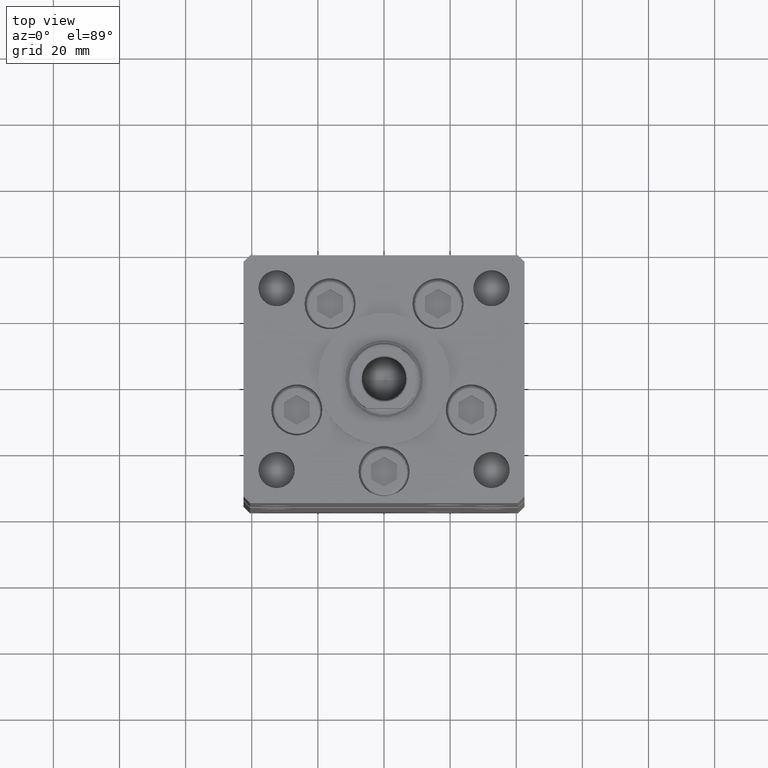
[diagram: clean part render]
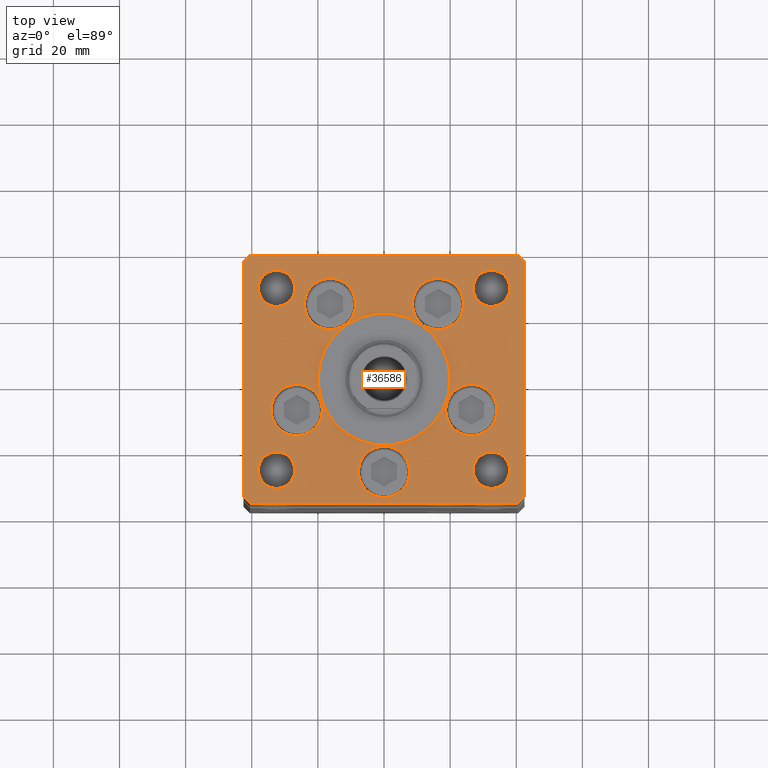
[diagram: same view with one face highlighted and labeled with its STEP entity id]
A machine part, top view. The second image highlights one B-rep face of the part: STEP entity #36586.
In plain terms, the highlighted planar face has unit normal (0, 0, 1).
Its self-contained STEP definition (entity closure, byte-faithful):
#10 = VECTOR ( 'NONE', #41483, 1000.000000000000000 ) ;
#140 = ORIENTED_EDGE ( 'NONE', *, *, #36681, .T. ) ;
#202 = ORIENTED_EDGE ( 'NONE', *, *, #10905, .F. ) ;
#457 = CARTESIAN_POINT ( 'NONE',  ( 32.50000000000000000, -27.50000000000000355, 0.000000000000000000 ) ) ;
#671 = DIRECTION ( 'NONE',  ( -1.000000000000000000, 0.000000000000000000, 0.000000000000000000 ) ) ;
#918 = VERTEX_POINT ( 'NONE', #44445 ) ;
#1058 = CARTESIAN_POINT ( 'NONE',  ( -32.50000000000000000, 27.50000000000000711, 0.000000000000000000 ) ) ;
#1734 = CIRCLE ( 'NONE', #24819, 7.750000000000000000 ) ;
#1789 = DIRECTION ( 'NONE',  ( 0.000000000000000000, 0.000000000000000000, 1.000000000000000000 ) ) ;
#1813 = FACE_BOUND ( 'NONE', #20156, .T. ) ;
#1897 = CARTESIAN_POINT ( 'NONE',  ( -24.07291334290544071, 22.74999999999999289, 0.000000000000000000 ) ) ;
#2089 = DIRECTION ( 'NONE',  ( 0.000000000000000000, 0.000000000000000000, 1.000000000000000000 ) ) ;
#2121 = EDGE_CURVE ( 'NONE', #31587, #43555, #35224, .T. ) ;
#2345 = DIRECTION ( 'NONE',  ( 0.000000000000000000, 0.000000000000000000, 1.000000000000000000 ) ) ;
#2460 = VERTEX_POINT ( 'NONE', #15230 ) ;
#2574 = EDGE_CURVE ( 'NONE', #52686, #34456, #12074, .T. ) ;
#2596 = CARTESIAN_POINT ( 'NONE',  ( -16.32291334290544071, 22.74999999999999289, 0.000000000000000000 ) ) ;
#2609 = DIRECTION ( 'NONE',  ( 0.000000000000000000, 0.000000000000000000, 1.000000000000000000 ) ) ;
#2640 = CARTESIAN_POINT ( 'NONE',  ( -20.00000000000000000, -6.938893903907228378E-15, 0.000000000000000000 ) ) ;
#2792 = VERTEX_POINT ( 'NONE', #8411 ) ;
#2837 = ORIENTED_EDGE ( 'NONE', *, *, #41812, .F. ) ;
#2969 = VERTEX_POINT ( 'NONE', #49570 ) ;
#2991 = CIRCLE ( 'NONE', #16754, 5.499999999999998224 ) ;
#3623 = AXIS2_PLACEMENT_3D ( 'NONE', #1058, #25792, #25279 ) ;
#3637 = LINE ( 'NONE', #49356, #13792 ) ;
#3720 = CARTESIAN_POINT ( 'NONE',  ( 38.00000000000000000, 27.49999999999999645, 0.000000000000000000 ) ) ;
#4692 = CIRCLE ( 'NONE', #52802, 7.750000000000000000 ) ;
#5087 = CARTESIAN_POINT ( 'NONE',  ( 32.50000000000000000, -27.50000000000000355, 0.000000000000000000 ) ) ;
#5841 = AXIS2_PLACEMENT_3D ( 'NONE', #27089, #27359, #11496 ) ;
#6270 = EDGE_CURVE ( 'NONE', #36732, #2460, #29373, .T. ) ;
#6627 = AXIS2_PLACEMENT_3D ( 'NONE', #31676, #2089, #14472 ) ;
#6690 = CARTESIAN_POINT ( 'NONE',  ( -40.50000000000000711, -37.50000000000003553, 0.000000000000000000 ) ) ;
#7692 = EDGE_CURVE ( 'NONE', #37945, #8237, #3637, .T. ) ;
#7710 = FACE_BOUND ( 'NONE', #17990, .T. ) ;
#7946 = LINE ( 'NONE', #8481, #46500 ) ;
#8055 = VERTEX_POINT ( 'NONE', #51126 ) ;
#8237 = VERTEX_POINT ( 'NONE', #18830 ) ;
#8411 = CARTESIAN_POINT ( 'NONE',  ( -18.64865316429777664, -9.333333333333330373, 0.000000000000000000 ) ) ;
#8425 = CARTESIAN_POINT ( 'NONE',  ( 40.50000000000001421, -37.49999999999992184, 0.000000000000000000 ) ) ;
#8427 = CARTESIAN_POINT ( 'NONE',  ( -8.572913342905440715, 22.74999999999999289, 0.000000000000000000 ) ) ;
#8448 = CARTESIAN_POINT ( 'NONE',  ( 24.07291334290544071, 22.74999999999999289, 0.000000000000000000 ) ) ;
#8481 = CARTESIAN_POINT ( 'NONE',  ( -40.50000000000000000, 37.49999999999997158, 0.000000000000000000 ) ) ;
#9397 = VERTEX_POINT ( 'NONE', #34872 ) ;
#9584 = EDGE_CURVE ( 'NONE', #918, #37945, #7946, .T. ) ;
#9602 = CARTESIAN_POINT ( 'NONE',  ( 16.32291334290544071, 22.74999999999999289, 0.000000000000000000 ) ) ;
#9612 = ORIENTED_EDGE ( 'NONE', *, *, #15824, .F. ) ;
#9767 = DIRECTION ( 'NONE',  ( -0.7071067811865524577, 0.7071067811865426878, 0.000000000000000000 ) ) ;
#10075 = ORIENTED_EDGE ( 'NONE', *, *, #7692, .T. ) ;
#10313 = CARTESIAN_POINT ( 'NONE',  ( -27.00000000000000355, 27.50000000000000711, 0.000000000000000000 ) ) ;
#10685 = FACE_BOUND ( 'NONE', #11605, .T. ) ;
#10905 = EDGE_CURVE ( 'NONE', #29883, #19106, #28498, .T. ) ;
#11018 = CARTESIAN_POINT ( 'NONE',  ( 38.00000000000000000, -27.50000000000000355, 0.000000000000000000 ) ) ;
#11291 = CARTESIAN_POINT ( 'NONE',  ( 27.00000000000000355, -27.50000000000000355, 0.000000000000000000 ) ) ;
#11292 = CARTESIAN_POINT ( 'NONE',  ( 32.50000000000000000, 27.49999999999999645, 0.000000000000000000 ) ) ;
#11496 = DIRECTION ( 'NONE',  ( 1.000000000000000000, 0.000000000000000000, 0.000000000000000000 ) ) ;
#11533 = DIRECTION ( 'NONE',  ( 0.000000000000000000, 0.000000000000000000, 1.000000000000000000 ) ) ;
#11589 = AXIS2_PLACEMENT_3D ( 'NONE', #52216, #15907, #12661 ) ;
#11605 = EDGE_LOOP ( 'NONE', ( #33203, #44833 ) ) ;
#11671 = VECTOR ( 'NONE', #14108, 1000.000000000000000 ) ;
#11731 = DIRECTION ( 'NONE',  ( 0.000000000000000000, 0.000000000000000000, 1.000000000000000000 ) ) ;
#11761 = FACE_BOUND ( 'NONE', #36510, .T. ) ;
#11823 = VECTOR ( 'NONE', #23531, 1000.000000000000114 ) ;
#12074 = CIRCLE ( 'NONE', #17258, 7.750000000000000000 ) ;
#12370 = EDGE_CURVE ( 'NONE', #13957, #2969, #24230, .T. ) ;
#12661 = DIRECTION ( 'NONE',  ( 1.000000000000000000, 0.000000000000000000, 0.000000000000000000 ) ) ;
#12895 = CARTESIAN_POINT ( 'NONE',  ( 8.572913342905442491, 22.74999999999999289, 0.000000000000000000 ) ) ;
#13072 = CARTESIAN_POINT ( 'NONE',  ( 0.000000000000000000, -28.00000000000000000, 0.000000000000000000 ) ) ;
#13318 = CARTESIAN_POINT ( 'NONE',  ( 40.50000000000000711, 37.50000000000000711, 0.000000000000000000 ) ) ;
#13360 = AXIS2_PLACEMENT_3D ( 'NONE', #9602, #1789, #42941 ) ;
#13407 = ORIENTED_EDGE ( 'NONE', *, *, #6270, .T. ) ;
#13723 = CIRCLE ( 'NONE', #36072, 5.499999999999998224 ) ;
#13743 = EDGE_CURVE ( 'NONE', #2969, #13957, #46625, .T. ) ;
#13781 = CARTESIAN_POINT ( 'NONE',  ( -42.50000000000000000, -35.50000000000004263, 0.000000000000000000 ) ) ;
#13792 = VECTOR ( 'NONE', #16275, 1000.000000000000000 ) ;
#13835 = CIRCLE ( 'NONE', #25016, 20.00000000000000000 ) ;
#13957 = VERTEX_POINT ( 'NONE', #10313 ) ;
#14014 = CARTESIAN_POINT ( 'NONE',  ( -38.00000000000000000, -27.50000000000000355, 0.000000000000000000 ) ) ;
#14108 = DIRECTION ( 'NONE',  ( -1.000000000000000000, -4.283267841918041508E-16, 0.000000000000000000 ) ) ;
#14137 = CARTESIAN_POINT ( 'NONE',  ( 18.64865316429777664, -9.333333333333328596, 0.000000000000000000 ) ) ;
#14461 = DIRECTION ( 'NONE',  ( 1.000000000000000000, 0.000000000000000000, 0.000000000000000000 ) ) ;
#14472 = DIRECTION ( 'NONE',  ( 1.000000000000000000, 0.000000000000000000, 0.000000000000000000 ) ) ;
#14729 = FACE_BOUND ( 'NONE', #16177, .T. ) ;
#15212 = CIRCLE ( 'NONE', #6627, 7.750000000000000000 ) ;
#15230 = CARTESIAN_POINT ( 'NONE',  ( 42.50000000000001421, 35.50000000000002132, 0.000000000000000000 ) ) ;
#15495 = CIRCLE ( 'NONE', #26643, 5.499999999999998224 ) ;
#15805 = FACE_BOUND ( 'NONE', #45159, .T. ) ;
#15824 = EDGE_CURVE ( 'NONE', #20735, #29434, #28651, .T. ) ;
#15907 = DIRECTION ( 'NONE',  ( 0.000000000000000000, 0.000000000000000000, 1.000000000000000000 ) ) ;
#16049 = CARTESIAN_POINT ( 'NONE',  ( 40.50000000000000711, 37.50000000000000711, 0.000000000000000000 ) ) ;
#16177 = EDGE_LOOP ( 'NONE', ( #48819, #46889 ) ) ;
#16275 = DIRECTION ( 'NONE',  ( 9.773090005503134168E-17, -1.000000000000000000, 0.000000000000000000 ) ) ;
#16300 = VECTOR ( 'NONE', #23101, 1000.000000000000000 ) ;
#16481 = CARTESIAN_POINT ( 'NONE',  ( 34.14865316429777664, -9.333333333333330373, 0.000000000000000000 ) ) ;
#16547 = VERTEX_POINT ( 'NONE', #8425 ) ;
#16754 = AXIS2_PLACEMENT_3D ( 'NONE', #35547, #47107, #51403 ) ;
#17082 = CARTESIAN_POINT ( 'NONE',  ( -32.50000000000000000, 27.50000000000000711, 0.000000000000000000 ) ) ;
#17258 = AXIS2_PLACEMENT_3D ( 'NONE', #25424, #25677, #33752 ) ;
#17319 = LINE ( 'NONE', #50648, #35930 ) ;
#17719 = DIRECTION ( 'NONE',  ( 0.000000000000000000, 0.000000000000000000, 1.000000000000000000 ) ) ;
#17721 = EDGE_CURVE ( 'NONE', #8237, #8055, #47111, .T. ) ;
#17821 = CARTESIAN_POINT ( 'NONE',  ( 16.32291334290544071, 22.74999999999999289, 0.000000000000000000 ) ) ;
#17986 = DIRECTION ( 'NONE',  ( -1.000000000000000000, 0.000000000000000000, 0.000000000000000000 ) ) ;
#17990 = EDGE_LOOP ( 'NONE', ( #2837, #19359 ) ) ;
#18219 = FACE_BOUND ( 'NONE', #37308, .T. ) ;
#18485 = CARTESIAN_POINT ( 'NONE',  ( 26.39865316429777664, -9.333333333333330373, 0.000000000000000000 ) ) ;
#18652 = DIRECTION ( 'NONE',  ( 0.000000000000000000, 0.000000000000000000, 1.000000000000000000 ) ) ;
#18830 = CARTESIAN_POINT ( 'NONE',  ( -42.50000000000000000, -35.50000000000004263, 0.000000000000000000 ) ) ;
#18930 = AXIS2_PLACEMENT_3D ( 'NONE', #18485, #2345, #14461 ) ;
#19020 = FACE_BOUND ( 'NONE', #22544, .T. ) ;
#19106 = VERTEX_POINT ( 'NONE', #29806 ) ;
#19359 = ORIENTED_EDGE ( 'NONE', *, *, #2574, .F. ) ;
#19422 = CIRCLE ( 'NONE', #37490, 7.750000000000000000 ) ;
#19486 = VERTEX_POINT ( 'NONE', #14137 ) ;
#19617 = CARTESIAN_POINT ( 'NONE',  ( -34.14865316429777664, -9.333333333333328596, 0.000000000000000000 ) ) ;
#20156 = EDGE_LOOP ( 'NONE', ( #202, #50055 ) ) ;
#20735 = VERTEX_POINT ( 'NONE', #8427 ) ;
#20989 = ORIENTED_EDGE ( 'NONE', *, *, #22606, .F. ) ;
#21757 = CARTESIAN_POINT ( 'NONE',  ( -32.50000000000000000, -27.50000000000000355, 0.000000000000000000 ) ) ;
#22403 = CARTESIAN_POINT ( 'NONE',  ( 32.50000000000000000, 27.49999999999999645, 0.000000000000000000 ) ) ;
#22544 = EDGE_LOOP ( 'NONE', ( #45175, #47452 ) ) ;
#22606 = EDGE_CURVE ( 'NONE', #40954, #19486, #4692, .T. ) ;
#22911 = AXIS2_PLACEMENT_3D ( 'NONE', #457, #25200, #41611 ) ;
#23101 = DIRECTION ( 'NONE',  ( 1.000000000000000000, 1.370645709413773283E-15, 0.000000000000000000 ) ) ;
#23421 = AXIS2_PLACEMENT_3D ( 'NONE', #17082, #29457, #671 ) ;
#23499 = AXIS2_PLACEMENT_3D ( 'NONE', #39919, #18652, #47173 ) ;
#23531 = DIRECTION ( 'NONE',  ( 0.7071067811865474617, 0.7071067811865474617, 0.000000000000000000 ) ) ;
#23617 = CIRCLE ( 'NONE', #11589, 7.750000000000000000 ) ;
#24131 = FACE_BOUND ( 'NONE', #34432, .T. ) ;
#24153 = DIRECTION ( 'NONE',  ( 0.000000000000000000, 0.000000000000000000, 1.000000000000000000 ) ) ;
#24230 = CIRCLE ( 'NONE', #3623, 5.499999999999998224 ) ;
#24417 = EDGE_CURVE ( 'NONE', #9397, #40318, #2991, .T. ) ;
#24453 = EDGE_CURVE ( 'NONE', #31582, #2792, #23617, .T. ) ;
#24819 = AXIS2_PLACEMENT_3D ( 'NONE', #13072, #49929, #29484 ) ;
#25016 = AXIS2_PLACEMENT_3D ( 'NONE', #48379, #11533, #48651 ) ;
#25074 = CARTESIAN_POINT ( 'NONE',  ( 42.50000000000000711, -35.49999999999992895, 0.000000000000000000 ) ) ;
#25200 = DIRECTION ( 'NONE',  ( -0.000000000000000000, -0.000000000000000000, -1.000000000000000000 ) ) ;
#25279 = DIRECTION ( 'NONE',  ( -1.000000000000000000, 0.000000000000000000, 0.000000000000000000 ) ) ;
#25330 = EDGE_LOOP ( 'NONE', ( #46679, #35418, #30548, #13407, #140, #30174, #47534, #10075 ) ) ;
#25424 = CARTESIAN_POINT ( 'NONE',  ( 0.000000000000000000, -28.00000000000000000, 0.000000000000000000 ) ) ;
#25565 = ORIENTED_EDGE ( 'NONE', *, *, #12370, .T. ) ;
#25592 = EDGE_CURVE ( 'NONE', #28355, #29567, #52878, .T. ) ;
#25677 = DIRECTION ( 'NONE',  ( 0.000000000000000000, 0.000000000000000000, 1.000000000000000000 ) ) ;
#25792 = DIRECTION ( 'NONE',  ( -0.000000000000000000, -0.000000000000000000, -1.000000000000000000 ) ) ;
#25808 = CIRCLE ( 'NONE', #18930, 7.750000000000000000 ) ;
#25847 = EDGE_CURVE ( 'NONE', #29434, #20735, #35717, .T. ) ;
#25999 = AXIS2_PLACEMENT_3D ( 'NONE', #22403, #39078, #38814 ) ;
#26030 = EDGE_CURVE ( 'NONE', #44840, #918, #43140, .T. ) ;
#26643 = AXIS2_PLACEMENT_3D ( 'NONE', #11292, #27698, #52446 ) ;
#26985 = VECTOR ( 'NONE', #46595, 1000.000000000000000 ) ;
#27089 = CARTESIAN_POINT ( 'NONE',  ( 0.000000000000000000, 0.000000000000000000, 0.000000000000000000 ) ) ;
#27093 = AXIS2_PLACEMENT_3D ( 'NONE', #2596, #11731, #39986 ) ;
#27295 = ORIENTED_EDGE ( 'NONE', *, *, #29961, .F. ) ;
#27359 = DIRECTION ( 'NONE',  ( -0.000000000000000000, 0.000000000000000000, 1.000000000000000000 ) ) ;
#27653 = EDGE_CURVE ( 'NONE', #29567, #28355, #19422, .T. ) ;
#27698 = DIRECTION ( 'NONE',  ( 0.000000000000000000, 0.000000000000000000, 1.000000000000000000 ) ) ;
#27897 = CARTESIAN_POINT ( 'NONE',  ( 0.000000000000000000, -6.938893903907228378E-15, 0.000000000000000000 ) ) ;
#28355 = VERTEX_POINT ( 'NONE', #8448 ) ;
#28498 = CIRCLE ( 'NONE', #35379, 20.00000000000000000 ) ;
#28651 = CIRCLE ( 'NONE', #23499, 7.750000000000000000 ) ;
#28906 = CARTESIAN_POINT ( 'NONE',  ( -42.50000000000000711, 35.50000000000000000, 0.000000000000000000 ) ) ;
#29178 = EDGE_CURVE ( 'NONE', #43555, #31587, #41814, .T. ) ;
#29189 = ORIENTED_EDGE ( 'NONE', *, *, #46896, .F. ) ;
#29373 = LINE ( 'NONE', #25074, #10 ) ;
#29434 = VERTEX_POINT ( 'NONE', #1897 ) ;
#29457 = DIRECTION ( 'NONE',  ( -0.000000000000000000, -0.000000000000000000, -1.000000000000000000 ) ) ;
#29484 = DIRECTION ( 'NONE',  ( 1.000000000000000000, 0.000000000000000000, 0.000000000000000000 ) ) ;
#29567 = VERTEX_POINT ( 'NONE', #12895 ) ;
#29806 = CARTESIAN_POINT ( 'NONE',  ( 20.00000000000000000, -4.489600305612522259E-15, 0.000000000000000000 ) ) ;
#29883 = VERTEX_POINT ( 'NONE', #2640 ) ;
#29961 = EDGE_CURVE ( 'NONE', #2792, #31582, #15212, .T. ) ;
#30174 = ORIENTED_EDGE ( 'NONE', *, *, #26030, .T. ) ;
#30265 = CIRCLE ( 'NONE', #25999, 5.499999999999998224 ) ;
#30548 = ORIENTED_EDGE ( 'NONE', *, *, #30859, .T. ) ;
#30859 = EDGE_CURVE ( 'NONE', #16547, #36732, #47467, .T. ) ;
#31582 = VERTEX_POINT ( 'NONE', #19617 ) ;
#31587 = VERTEX_POINT ( 'NONE', #11291 ) ;
#31676 = CARTESIAN_POINT ( 'NONE',  ( -26.39865316429777664, -9.333333333333330373, 0.000000000000000000 ) ) ;
#31900 = DIRECTION ( 'NONE',  ( -0.7071067811865536790, -0.7071067811865414665, 0.000000000000000000 ) ) ;
#33203 = ORIENTED_EDGE ( 'NONE', *, *, #52257, .F. ) ;
#33648 = ORIENTED_EDGE ( 'NONE', *, *, #24453, .F. ) ;
#33745 = CARTESIAN_POINT ( 'NONE',  ( -7.750000000000000000, -28.00000000000000000, 0.000000000000000000 ) ) ;
#33752 = DIRECTION ( 'NONE',  ( 1.000000000000000000, 0.000000000000000000, 0.000000000000000000 ) ) ;
#34129 = DIRECTION ( 'NONE',  ( 1.000000000000000000, 0.000000000000000000, 0.000000000000000000 ) ) ;
#34432 = EDGE_LOOP ( 'NONE', ( #25565, #40630 ) ) ;
#34456 = VERTEX_POINT ( 'NONE', #44144 ) ;
#34503 = DIRECTION ( 'NONE',  ( 1.000000000000000000, 0.000000000000000000, 0.000000000000000000 ) ) ;
#34872 = CARTESIAN_POINT ( 'NONE',  ( -27.00000000000000355, -27.50000000000000355, 0.000000000000000000 ) ) ;
#35224 = CIRCLE ( 'NONE', #51533, 5.499999999999998224 ) ;
#35379 = AXIS2_PLACEMENT_3D ( 'NONE', #27897, #2609, #35433 ) ;
#35418 = ORIENTED_EDGE ( 'NONE', *, *, #44357, .T. ) ;
#35433 = DIRECTION ( 'NONE',  ( 1.000000000000000000, 0.000000000000000000, 0.000000000000000000 ) ) ;
#35442 = PLANE ( 'NONE',  #5841 ) ;
#35547 = CARTESIAN_POINT ( 'NONE',  ( -32.50000000000000000, -27.50000000000000355, 0.000000000000000000 ) ) ;
#35717 = CIRCLE ( 'NONE', #27093, 7.750000000000000000 ) ;
#35930 = VECTOR ( 'NONE', #9767, 1000.000000000000000 ) ;
#35975 = FACE_OUTER_BOUND ( 'NONE', #25330, .T. ) ;
#36072 = AXIS2_PLACEMENT_3D ( 'NONE', #21757, #17719, #34129 ) ;
#36510 = EDGE_LOOP ( 'NONE', ( #27295, #33648 ) ) ;
#36555 = ORIENTED_EDGE ( 'NONE', *, *, #25847, .F. ) ;
#36586 = ADVANCED_FACE ( 'NONE', ( #1813, #18219, #47002, #15805, #7710, #11761, #24131, #10685, #19020, #35975, #14729 ), #35442, .T. ) ;
#36681 = EDGE_CURVE ( 'NONE', #2460, #44840, #17319, .T. ) ;
#36732 = VERTEX_POINT ( 'NONE', #46357 ) ;
#37308 = EDGE_LOOP ( 'NONE', ( #9612, #36555 ) ) ;
#37490 = AXIS2_PLACEMENT_3D ( 'NONE', #17821, #42040, #34503 ) ;
#37945 = VERTEX_POINT ( 'NONE', #28906 ) ;
#38814 = DIRECTION ( 'NONE',  ( 1.000000000000000000, 0.000000000000000000, 0.000000000000000000 ) ) ;
#39078 = DIRECTION ( 'NONE',  ( 0.000000000000000000, 0.000000000000000000, 1.000000000000000000 ) ) ;
#39919 = CARTESIAN_POINT ( 'NONE',  ( -16.32291334290544071, 22.74999999999999289, 0.000000000000000000 ) ) ;
#39986 = DIRECTION ( 'NONE',  ( 1.000000000000000000, 0.000000000000000000, 0.000000000000000000 ) ) ;
#40318 = VERTEX_POINT ( 'NONE', #14014 ) ;
#40589 = EDGE_CURVE ( 'NONE', #40318, #9397, #13723, .T. ) ;
#40630 = ORIENTED_EDGE ( 'NONE', *, *, #13743, .T. ) ;
#40954 = VERTEX_POINT ( 'NONE', #16481 ) ;
#41483 = DIRECTION ( 'NONE',  ( 9.773090005503145261E-17, 1.000000000000000000, 0.000000000000000000 ) ) ;
#41611 = DIRECTION ( 'NONE',  ( -1.000000000000000000, 0.000000000000000000, 0.000000000000000000 ) ) ;
#41812 = EDGE_CURVE ( 'NONE', #34456, #52686, #1734, .T. ) ;
#41814 = CIRCLE ( 'NONE', #22911, 5.499999999999998224 ) ;
#42040 = DIRECTION ( 'NONE',  ( 0.000000000000000000, 0.000000000000000000, 1.000000000000000000 ) ) ;
#42270 = ORIENTED_EDGE ( 'NONE', *, *, #27653, .F. ) ;
#42275 = EDGE_LOOP ( 'NONE', ( #52392, #42270 ) ) ;
#42941 = DIRECTION ( 'NONE',  ( 1.000000000000000000, 0.000000000000000000, 0.000000000000000000 ) ) ;
#43140 = LINE ( 'NONE', #13318, #11671 ) ;
#43555 = VERTEX_POINT ( 'NONE', #11018 ) ;
#44144 = CARTESIAN_POINT ( 'NONE',  ( 7.750000000000000000, -28.00000000000000000, 0.000000000000000000 ) ) ;
#44357 = EDGE_CURVE ( 'NONE', #8055, #16547, #51889, .T. ) ;
#44445 = CARTESIAN_POINT ( 'NONE',  ( -40.50000000000000000, 37.49999999999997158, 0.000000000000000000 ) ) ;
#44563 = CARTESIAN_POINT ( 'NONE',  ( 27.00000000000000355, 27.49999999999999645, 0.000000000000000000 ) ) ;
#44833 = ORIENTED_EDGE ( 'NONE', *, *, #46527, .F. ) ;
#44840 = VERTEX_POINT ( 'NONE', #16049 ) ;
#45135 = CARTESIAN_POINT ( 'NONE',  ( 26.39865316429777664, -9.333333333333330373, 0.000000000000000000 ) ) ;
#45159 = EDGE_LOOP ( 'NONE', ( #20989, #29189 ) ) ;
#45175 = ORIENTED_EDGE ( 'NONE', *, *, #24417, .F. ) ;
#46357 = CARTESIAN_POINT ( 'NONE',  ( 42.50000000000000711, -35.49999999999992895, 0.000000000000000000 ) ) ;
#46500 = VECTOR ( 'NONE', #31900, 1000.000000000000000 ) ;
#46527 = EDGE_CURVE ( 'NONE', #51782, #52517, #15495, .T. ) ;
#46595 = DIRECTION ( 'NONE',  ( 0.7071067811865487940, -0.7071067811865463515, 0.000000000000000000 ) ) ;
#46625 = CIRCLE ( 'NONE', #23421, 5.499999999999998224 ) ;
#46679 = ORIENTED_EDGE ( 'NONE', *, *, #17721, .T. ) ;
#46772 = DIRECTION ( 'NONE',  ( -0.000000000000000000, -0.000000000000000000, -1.000000000000000000 ) ) ;
#46889 = ORIENTED_EDGE ( 'NONE', *, *, #2121, .T. ) ;
#46896 = EDGE_CURVE ( 'NONE', #19486, #40954, #25808, .T. ) ;
#47002 = FACE_BOUND ( 'NONE', #42275, .T. ) ;
#47107 = DIRECTION ( 'NONE',  ( 0.000000000000000000, 0.000000000000000000, 1.000000000000000000 ) ) ;
#47111 = LINE ( 'NONE', #13781, #26985 ) ;
#47173 = DIRECTION ( 'NONE',  ( 1.000000000000000000, 0.000000000000000000, 0.000000000000000000 ) ) ;
#47452 = ORIENTED_EDGE ( 'NONE', *, *, #40589, .F. ) ;
#47467 = LINE ( 'NONE', #51775, #11823 ) ;
#47534 = ORIENTED_EDGE ( 'NONE', *, *, #9584, .T. ) ;
#48379 = CARTESIAN_POINT ( 'NONE',  ( 0.000000000000000000, -6.938893903907228378E-15, 0.000000000000000000 ) ) ;
#48557 = EDGE_CURVE ( 'NONE', #19106, #29883, #13835, .T. ) ;
#48651 = DIRECTION ( 'NONE',  ( 1.000000000000000000, 0.000000000000000000, 0.000000000000000000 ) ) ;
#48819 = ORIENTED_EDGE ( 'NONE', *, *, #29178, .T. ) ;
#48887 = DIRECTION ( 'NONE',  ( 1.000000000000000000, 0.000000000000000000, 0.000000000000000000 ) ) ;
#49356 = CARTESIAN_POINT ( 'NONE',  ( -42.50000000000000711, 35.50000000000000000, 0.000000000000000000 ) ) ;
#49570 = CARTESIAN_POINT ( 'NONE',  ( -38.00000000000000000, 27.50000000000000711, 0.000000000000000000 ) ) ;
#49929 = DIRECTION ( 'NONE',  ( 0.000000000000000000, 0.000000000000000000, 1.000000000000000000 ) ) ;
#50055 = ORIENTED_EDGE ( 'NONE', *, *, #48557, .F. ) ;
#50648 = CARTESIAN_POINT ( 'NONE',  ( 42.50000000000001421, 35.50000000000002132, 0.000000000000000000 ) ) ;
#51126 = CARTESIAN_POINT ( 'NONE',  ( -40.50000000000000711, -37.50000000000003553, 0.000000000000000000 ) ) ;
#51403 = DIRECTION ( 'NONE',  ( 1.000000000000000000, 0.000000000000000000, 0.000000000000000000 ) ) ;
#51533 = AXIS2_PLACEMENT_3D ( 'NONE', #5087, #46772, #17986 ) ;
#51775 = CARTESIAN_POINT ( 'NONE',  ( 40.50000000000001421, -37.49999999999992184, 0.000000000000000000 ) ) ;
#51782 = VERTEX_POINT ( 'NONE', #44563 ) ;
#51889 = LINE ( 'NONE', #6690, #16300 ) ;
#52216 = CARTESIAN_POINT ( 'NONE',  ( -26.39865316429777664, -9.333333333333330373, 0.000000000000000000 ) ) ;
#52257 = EDGE_CURVE ( 'NONE', #52517, #51782, #30265, .T. ) ;
#52392 = ORIENTED_EDGE ( 'NONE', *, *, #25592, .F. ) ;
#52446 = DIRECTION ( 'NONE',  ( 1.000000000000000000, 0.000000000000000000, 0.000000000000000000 ) ) ;
#52517 = VERTEX_POINT ( 'NONE', #3720 ) ;
#52686 = VERTEX_POINT ( 'NONE', #33745 ) ;
#52802 = AXIS2_PLACEMENT_3D ( 'NONE', #45135, #24153, #48887 ) ;
#52878 = CIRCLE ( 'NONE', #13360, 7.750000000000000000 ) ;